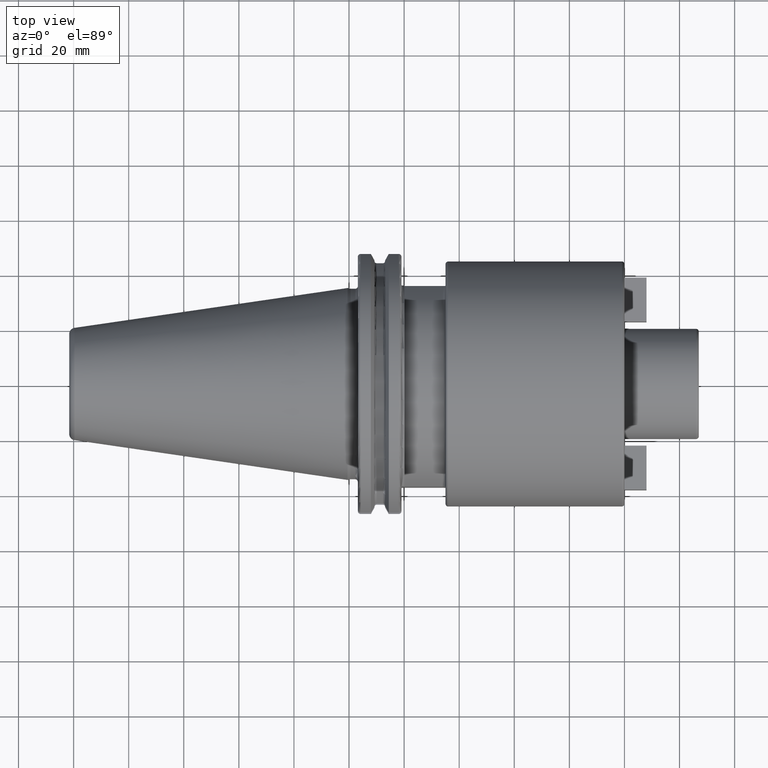
[diagram: clean part render]
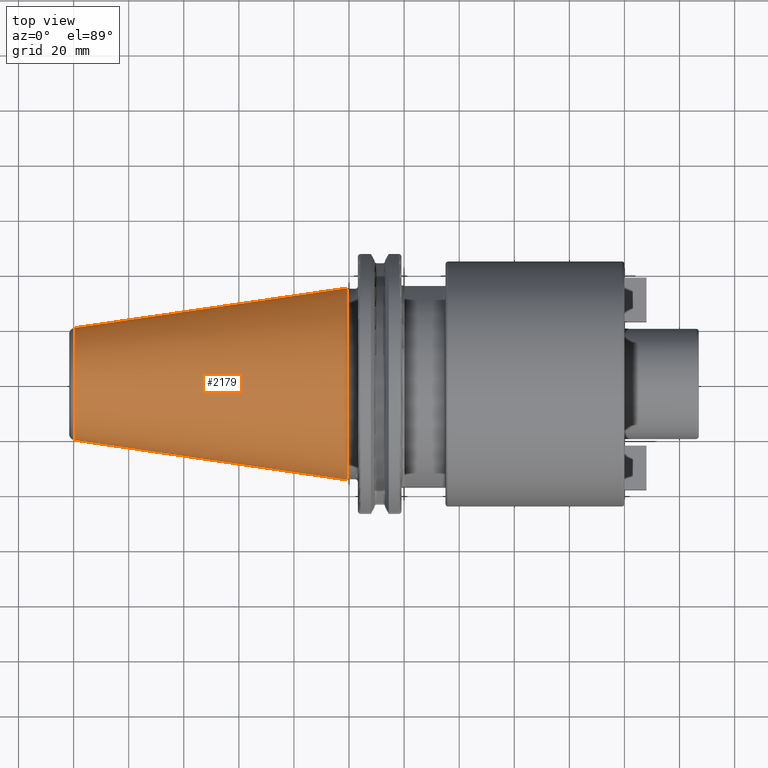
[diagram: same view with one face highlighted and labeled with its STEP entity id]
A machine part, top view. The second image highlights one B-rep face of the part: STEP entity #2179.
In plain terms, the highlighted conical surface has half-angle 8.298 deg.
Its self-contained STEP definition (entity closure, byte-faithful):
#37=CARTESIAN_POINT('',(-9.967471700563E1,0.E0,0.E0));
#38=DIRECTION('',(1.E0,0.E0,0.E0));
#39=DIRECTION('',(0.E0,1.E0,0.E0));
#40=AXIS2_PLACEMENT_3D('',#37,#38,#39);
#42=CARTESIAN_POINT('',(-4.896823332305E-1,0.E0,0.E0));
#43=DIRECTION('',(1.E0,0.E0,0.E0));
#44=DIRECTION('',(0.E0,1.E0,0.E0));
#45=AXIS2_PLACEMENT_3D('',#42,#43,#44);
#47=DIRECTION('',(-9.895312636440E-1,-1.443186691705E-1,0.E0));
#48=VECTOR('',#47,1.002343617797E2);
#49=CARTESIAN_POINT('',(-4.896823332305E-1,3.485358204157E1,0.E0));
#50=LINE('',#49,#48);
#51=DIRECTION('',(-9.895312636440E-1,1.443186691705E-1,0.E0));
#52=VECTOR('',#51,1.002343617797E2);
#53=CARTESIAN_POINT('',(-4.896823332305E-1,-3.485358204157E1,0.E0));
#54=LINE('',#53,#52);
#1755=CARTESIAN_POINT('',(-9.967471700563E1,2.038789234437E1,0.E0));
#1757=VERTEX_POINT('',#1755);
#1759=CARTESIAN_POINT('',(-9.967471700563E1,-2.038789234437E1,0.E0));
#1761=VERTEX_POINT('',#1759);
#1823=CARTESIAN_POINT('',(-4.896823332305E-1,3.485358204157E1,0.E0));
#1824=VERTEX_POINT('',#1823);
#1825=CARTESIAN_POINT('',(-4.896823332305E-1,-3.485358204157E1,0.E0));
#1826=VERTEX_POINT('',#1825);
#2165=CARTESIAN_POINT('',(-5.008219966943E1,0.E0,0.E0));
#2166=DIRECTION('',(1.E0,0.E0,0.E0));
#2167=DIRECTION('',(0.E0,-1.E0,0.E0));
#2168=AXIS2_PLACEMENT_3D('',#2165,#2166,#2167);
#2169=CONICAL_SURFACE('',#2168,2.762073719297E1,8.297826828206E0);
#2171=ORIENTED_EDGE('',*,*,#2170,.F.);
#2173=ORIENTED_EDGE('',*,*,#2172,.T.);
#2175=ORIENTED_EDGE('',*,*,#2174,.T.);
#2176=ORIENTED_EDGE('',*,*,#2158,.F.);
#2177=EDGE_LOOP('',(#2171,#2173,#2175,#2176));
#2178=FACE_OUTER_BOUND('',#2177,.F.);
#2179=ADVANCED_FACE('',(#2178),#2169,.T.);
#41=CIRCLE('',#40,2.038789234437E1);
#46=CIRCLE('',#45,3.485358204157E1);
#2158=EDGE_CURVE('',#1757,#1761,#41,.T.);
#2170=EDGE_CURVE('',#1824,#1757,#50,.T.);
#2172=EDGE_CURVE('',#1824,#1826,#46,.T.);
#2174=EDGE_CURVE('',#1826,#1761,#54,.T.);